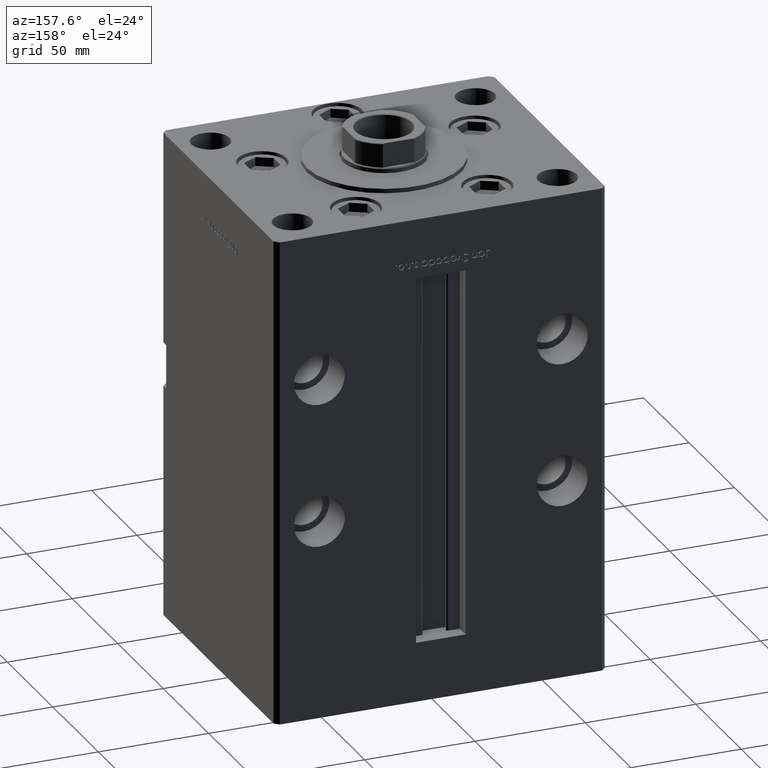
[diagram: clean part render]
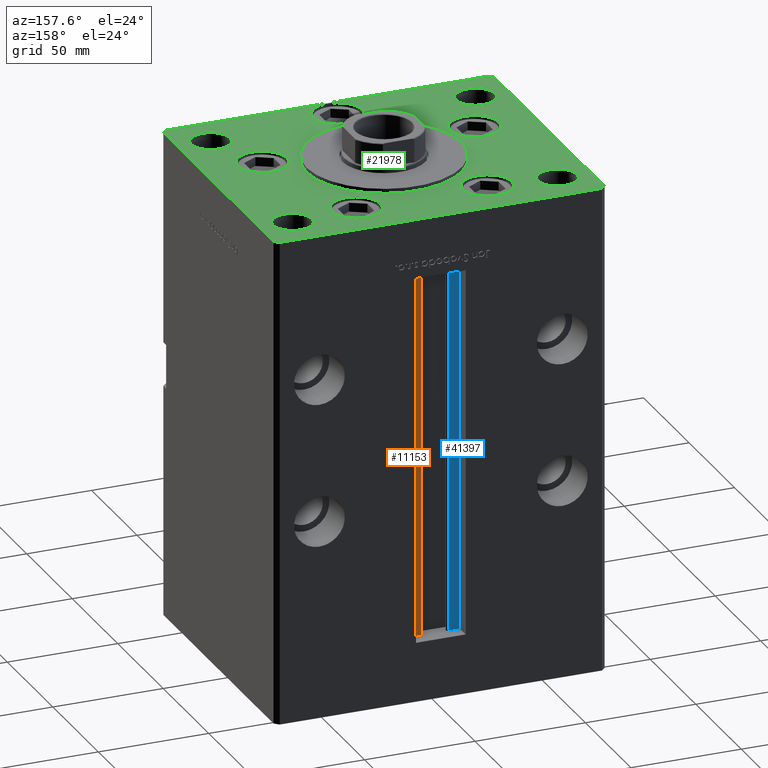
[diagram: same view with three faces highlighted in distinct colors, each labeled with its STEP entity id]
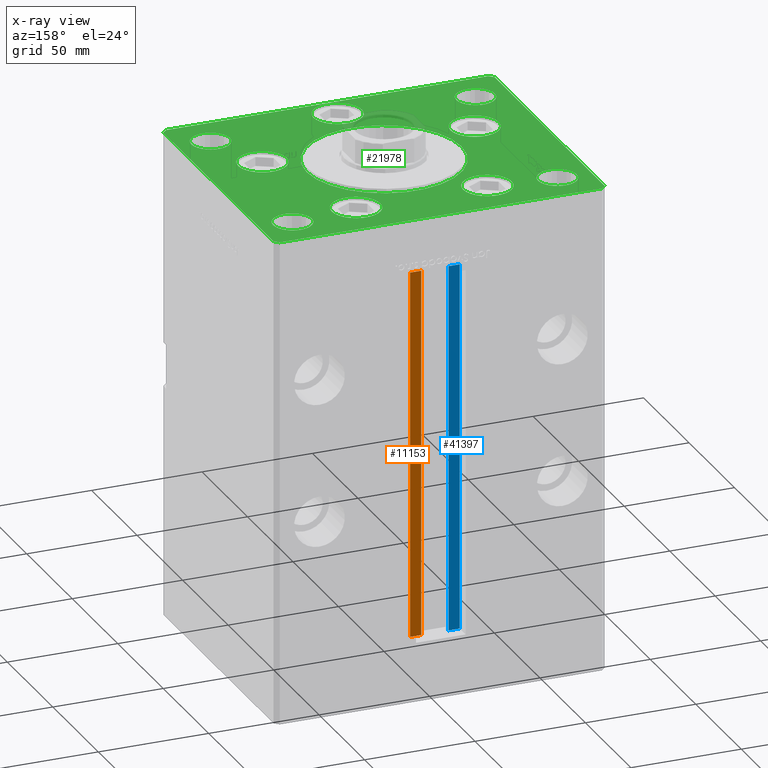
[diagram: x-ray of the same camera — body ghosted, the three highlighted faces saturated]
A machine part, auxiliary view with three faces highlighted in distinct colors.
The next image is the same camera in x-ray (body ghosted, the three faces saturated) — at least one of them is partly hidden behind the body in this view.
Their STEP definitions:

[orange] entity #11153 — the highlighted planar face has unit normal (0, -1, 0).
#974 = CARTESIAN_POINT ( 'NONE',  ( 0.000000000000000000, 56.00000000000000000, 167.0000000000000000 ) ) ;
#1354 = ORIENTED_EDGE ( 'NONE', *, *, #49458, .T. ) ;
#2306 = CARTESIAN_POINT ( 'NONE',  ( 6.183333333334001480, 56.00000000000000000, 0.000000000000000000 ) ) ;
#2781 = CARTESIAN_POINT ( 'NONE',  ( 6.183333333334001480, 56.00000000000000000, 0.000000000000000000 ) ) ;
#2928 = CARTESIAN_POINT ( 'NONE',  ( 6.183333333334001480, 56.00000000000000000, 166.9999999999999432 ) ) ;
#5123 = VERTEX_POINT ( 'NONE', #2928 ) ;
#7631 = PLANE ( 'NONE',  #26382 ) ;
#7887 = FACE_OUTER_BOUND ( 'NONE', #38687, .T. ) ;
#8849 = EDGE_CURVE ( 'NONE', #17867, #24452, #16036, .T. ) ;
#10290 = DIRECTION ( 'NONE',  ( -1.000000000000000000, 0.000000000000000000, 0.000000000000000000 ) ) ;
#11153 = ADVANCED_FACE ( 'NONE', ( #7887 ), #7631, .F. ) ;
#11917 = CARTESIAN_POINT ( 'NONE',  ( 6.183333333334001480, 56.00000000000000000, 0.000000000000000000 ) ) ;
#13519 = DIRECTION ( 'NONE',  ( -0.000000000000000000, -0.000000000000000000, 1.000000000000000000 ) ) ;
#16036 = LINE ( 'NONE', #29589, #51992 ) ;
#16175 = VECTOR ( 'NONE', #31377, 1000.000000000000000 ) ;
#17867 = VERTEX_POINT ( 'NONE', #25040 ) ;
#20837 = EDGE_CURVE ( 'NONE', #37995, #17867, #39203, .T. ) ;
#22025 = VECTOR ( 'NONE', #10290, 1000.000000000000000 ) ;
#23720 = CARTESIAN_POINT ( 'NONE',  ( 11.25000000000000178, 56.00000000000000000, 166.9999999999999432 ) ) ;
#23973 = DIRECTION ( 'NONE',  ( 0.000000000000000000, -1.000000000000000000, 0.000000000000000000 ) ) ;
#24452 = VERTEX_POINT ( 'NONE', #23720 ) ;
#25040 = CARTESIAN_POINT ( 'NONE',  ( 11.25000000000000178, 56.00000000000000000, 0.000000000000000000 ) ) ;
#26382 = AXIS2_PLACEMENT_3D ( 'NONE', #11917, #23973, #37063 ) ;
#27096 = LINE ( 'NONE', #43438, #16175 ) ;
#29589 = CARTESIAN_POINT ( 'NONE',  ( 11.25000000000000178, 56.00000000000000000, 0.000000000000000000 ) ) ;
#31377 = DIRECTION ( 'NONE',  ( -0.000000000000000000, -0.000000000000000000, 1.000000000000000000 ) ) ;
#35745 = ORIENTED_EDGE ( 'NONE', *, *, #20837, .F. ) ;
#35994 = DIRECTION ( 'NONE',  ( 1.000000000000000000, 0.000000000000000000, 0.000000000000000000 ) ) ;
#37063 = DIRECTION ( 'NONE',  ( 0.000000000000000000, -0.000000000000000000, -1.000000000000000000 ) ) ;
#37995 = VERTEX_POINT ( 'NONE', #2306 ) ;
#38575 = VECTOR ( 'NONE', #35994, 1000.000000000000000 ) ;
#38687 = EDGE_LOOP ( 'NONE', ( #48356, #35745, #1354, #44876 ) ) ;
#39203 = LINE ( 'NONE', #2781, #38575 ) ;
#42286 = EDGE_CURVE ( 'NONE', #24452, #5123, #42698, .T. ) ;
#42698 = LINE ( 'NONE', #974, #22025 ) ;
#43438 = CARTESIAN_POINT ( 'NONE',  ( 6.183333333334001480, 56.00000000000000000, 0.000000000000000000 ) ) ;
#44876 = ORIENTED_EDGE ( 'NONE', *, *, #42286, .F. ) ;
#48356 = ORIENTED_EDGE ( 'NONE', *, *, #8849, .F. ) ;
#49458 = EDGE_CURVE ( 'NONE', #37995, #5123, #27096, .T. ) ;
#51992 = VECTOR ( 'NONE', #13519, 1000.000000000000000 ) ;

[blue] entity #41397 — the highlighted planar face has unit normal (0, -1, 0).
#1021 = VECTOR ( 'NONE', #28704, 1000.000000000000000 ) ;
#1062 = LINE ( 'NONE', #17424, #28076 ) ;
#1606 = LINE ( 'NONE', #13400, #40878 ) ;
#3549 = ORIENTED_EDGE ( 'NONE', *, *, #22784, .F. ) ;
#3586 = EDGE_LOOP ( 'NONE', ( #50333, #3549, #49291, #48308 ) ) ;
#4071 = LINE ( 'NONE', #49071, #1021 ) ;
#5880 = DIRECTION ( 'NONE',  ( -0.000000000000000000, -0.000000000000000000, 1.000000000000000000 ) ) ;
#9510 = CARTESIAN_POINT ( 'NONE',  ( -11.25000000000000178, 56.00000000000000000, 166.9999999999999432 ) ) ;
#9558 = EDGE_CURVE ( 'NONE', #14223, #13226, #1062, .T. ) ;
#10227 = CARTESIAN_POINT ( 'NONE',  ( -6.183333333334002369, 56.00000000000000000, 166.9999999999999432 ) ) ;
#10309 = EDGE_CURVE ( 'NONE', #50434, #11855, #1606, .T. ) ;
#11855 = VERTEX_POINT ( 'NONE', #10227 ) ;
#13226 = VERTEX_POINT ( 'NONE', #9510 ) ;
#13400 = CARTESIAN_POINT ( 'NONE',  ( -6.183333333334001480, 56.00000000000000000, 0.000000000000000000 ) ) ;
#14223 = VERTEX_POINT ( 'NONE', #24209 ) ;
#16152 = PLANE ( 'NONE',  #36555 ) ;
#17424 = CARTESIAN_POINT ( 'NONE',  ( -11.25000000000000178, 56.00000000000000000, 0.000000000000000000 ) ) ;
#20451 = DIRECTION ( 'NONE',  ( 0.000000000000000000, 0.000000000000000000, -1.000000000000000000 ) ) ;
#22784 = EDGE_CURVE ( 'NONE', #14223, #50434, #4071, .T. ) ;
#24209 = CARTESIAN_POINT ( 'NONE',  ( -11.25000000000000178, 56.00000000000000000, 0.000000000000000000 ) ) ;
#28076 = VECTOR ( 'NONE', #5880, 1000.000000000000000 ) ;
#28467 = DIRECTION ( 'NONE',  ( 0.000000000000000000, -1.000000000000000000, -0.000000000000000000 ) ) ;
#28704 = DIRECTION ( 'NONE',  ( 1.000000000000000000, -0.000000000000000000, -0.000000000000000000 ) ) ;
#31105 = DIRECTION ( 'NONE',  ( -1.000000000000000000, 0.000000000000000000, 0.000000000000000000 ) ) ;
#31434 = VECTOR ( 'NONE', #31105, 1000.000000000000000 ) ;
#31652 = CARTESIAN_POINT ( 'NONE',  ( 0.000000000000000000, 56.00000000000000000, 167.0000000000000000 ) ) ;
#32491 = CARTESIAN_POINT ( 'NONE',  ( -6.183333333334001480, 56.00000000000000000, 0.000000000000000000 ) ) ;
#36504 = FACE_OUTER_BOUND ( 'NONE', #3586, .T. ) ;
#36555 = AXIS2_PLACEMENT_3D ( 'NONE', #32491, #28467, #20451 ) ;
#40878 = VECTOR ( 'NONE', #51170, 1000.000000000000000 ) ;
#41397 = ADVANCED_FACE ( 'NONE', ( #36504 ), #16152, .F. ) ;
#42733 = EDGE_CURVE ( 'NONE', #11855, #13226, #47190, .T. ) ;
#47190 = LINE ( 'NONE', #31652, #31434 ) ;
#48308 = ORIENTED_EDGE ( 'NONE', *, *, #42733, .F. ) ;
#49071 = CARTESIAN_POINT ( 'NONE',  ( -6.183333333334001480, 56.00000000000000000, 0.000000000000000000 ) ) ;
#49291 = ORIENTED_EDGE ( 'NONE', *, *, #9558, .T. ) ;
#50333 = ORIENTED_EDGE ( 'NONE', *, *, #10309, .F. ) ;
#50434 = VERTEX_POINT ( 'NONE', #52097 ) ;
#51170 = DIRECTION ( 'NONE',  ( -0.000000000000000000, -0.000000000000000000, 1.000000000000000000 ) ) ;
#52097 = CARTESIAN_POINT ( 'NONE',  ( -6.183333333334001480, 56.00000000000000000, 0.000000000000000000 ) ) ;

[green] entity #21978 — the highlighted planar face has unit normal (0, 0, 1).
#268 = VECTOR ( 'NONE', #17194, 1000.000000000000000 ) ;
#505 = DIRECTION ( 'NONE',  ( 1.000000000000000000, 0.000000000000000000, 0.000000000000000000 ) ) ;
#564 = AXIS2_PLACEMENT_3D ( 'NONE', #45406, #28801, #17279 ) ;
#571 = EDGE_LOOP ( 'NONE', ( #37069, #52110 ) ) ;
#1110 = DIRECTION ( 'NONE',  ( 0.000000000000000000, 0.000000000000000000, 1.000000000000000000 ) ) ;
#1119 = VERTEX_POINT ( 'NONE', #6177 ) ;
#3832 = CARTESIAN_POINT ( 'NONE',  ( 40.73102073172061921, 41.43749999999997868, 0.000000000000000000 ) ) ;
#4017 = AXIS2_PLACEMENT_3D ( 'NONE', #35761, #52394, #40319 ) ;
#4080 = VERTEX_POINT ( 'NONE', #48794 ) ;
#4099 = EDGE_LOOP ( 'NONE', ( #15639, #48298 ) ) ;
#4277 = DIRECTION ( 'NONE',  ( 0.000000000000000000, 0.000000000000000000, 1.000000000000000000 ) ) ;
#4371 = FACE_BOUND ( 'NONE', #571, .T. ) ;
#4529 = CARTESIAN_POINT ( 'NONE',  ( 0.000000000000000000, -6.938893903907228378E-15, 0.000000000000000000 ) ) ;
#4550 = VERTEX_POINT ( 'NONE', #42505 ) ;
#4707 = CARTESIAN_POINT ( 'NONE',  ( -40.73102073172061921, 41.43749999999997868, 0.000000000000000000 ) ) ;
#4763 = VERTEX_POINT ( 'NONE', #49183 ) ;
#4843 = CIRCLE ( 'NONE', #41630, 11.00000000000000355 ) ;
#5784 = VERTEX_POINT ( 'NONE', #3832 ) ;
#6046 = CIRCLE ( 'NONE', #31753, 11.00000000000000000 ) ;
#6177 = CARTESIAN_POINT ( 'NONE',  ( 11.00000000000000000, -51.00000000000000000, 0.000000000000000000 ) ) ;
#6267 = LINE ( 'NONE', #50496, #21372 ) ;
#6334 = CARTESIAN_POINT ( 'NONE',  ( 51.24999999999999289, 45.00000000000000000, 0.000000000000000000 ) ) ;
#6416 = EDGE_LOOP ( 'NONE', ( #37378, #16732 ) ) ;
#6610 = AXIS2_PLACEMENT_3D ( 'NONE', #36128, #40416, #51966 ) ;
#6714 = CARTESIAN_POINT ( 'NONE',  ( 0.000000000000000000, 0.000000000000000000, 0.000000000000000000 ) ) ;
#6978 = FACE_BOUND ( 'NONE', #31462, .T. ) ;
#7041 = VERTEX_POINT ( 'NONE', #20681 ) ;
#7513 = PLANE ( 'NONE',  #42904 ) ;
#8084 = CIRCLE ( 'NONE', #14918, 11.00000000000000000 ) ;
#8085 = CARTESIAN_POINT ( 'NONE',  ( 0.000000000000000000, -51.00000000000000000, 0.000000000000000000 ) ) ;
#8207 = CARTESIAN_POINT ( 'NONE',  ( 59.08326112068523628, -16.99999999999998934, 0.000000000000000000 ) ) ;
#8300 = EDGE_LOOP ( 'NONE', ( #17481, #18244, #29220, #20880, #45503, #41287, #27871, #31729 ) ) ;
#8396 = FACE_BOUND ( 'NONE', #6416, .T. ) ;
#8527 = DIRECTION ( 'NONE',  ( 1.000000000000000000, 0.000000000000000000, 0.000000000000000000 ) ) ;
#8601 = DIRECTION ( 'NONE',  ( 1.000000000000000000, 0.000000000000000000, 0.000000000000000000 ) ) ;
#8714 = ORIENTED_EDGE ( 'NONE', *, *, #43581, .F. ) ;
#9118 = CARTESIAN_POINT ( 'NONE',  ( -29.73102073172061921, 41.43749999999997868, 0.000000000000000000 ) ) ;
#9337 = CARTESIAN_POINT ( 'NONE',  ( 29.73102073172061921, 41.43749999999997868, 0.000000000000000000 ) ) ;
#10521 = VERTEX_POINT ( 'NONE', #15786 ) ;
#10675 = CARTESIAN_POINT ( 'NONE',  ( -51.25000000000000000, 45.00000000000000711, 0.000000000000000000 ) ) ;
#10747 = CIRCLE ( 'NONE', #44975, 8.750000000000000000 ) ;
#10846 = ORIENTED_EDGE ( 'NONE', *, *, #52854, .F. ) ;
#10982 = CARTESIAN_POINT ( 'NONE',  ( 0.000000000000000000, -6.938893903907228378E-15, 0.000000000000000000 ) ) ;
#11052 = CIRCLE ( 'NONE', #15334, 11.00000000000000355 ) ;
#11375 = VECTOR ( 'NONE', #46253, 1000.000000000000000 ) ;
#11770 = DIRECTION ( 'NONE',  ( 0.000000000000000000, 0.000000000000000000, 1.000000000000000000 ) ) ;
#12117 = ORIENTED_EDGE ( 'NONE', *, *, #12485, .T. ) ;
#12122 = VERTEX_POINT ( 'NONE', #35328 ) ;
#12186 = VERTEX_POINT ( 'NONE', #23288 ) ;
#12470 = DIRECTION ( 'NONE',  ( 0.000000000000000000, 0.000000000000000000, 1.000000000000000000 ) ) ;
#12485 = EDGE_CURVE ( 'NONE', #38963, #7041, #52108, .T. ) ;
#12887 = DIRECTION ( 'NONE',  ( 1.000000000000000000, 0.000000000000000000, 0.000000000000000000 ) ) ;
#12928 = EDGE_CURVE ( 'NONE', #27529, #50149, #26416, .T. ) ;
#12941 = FACE_BOUND ( 'NONE', #16078, .T. ) ;
#13097 = VERTEX_POINT ( 'NONE', #8207 ) ;
#13206 = DIRECTION ( 'NONE',  ( 0.000000000000000000, 0.000000000000000000, 1.000000000000000000 ) ) ;
#13484 = VERTEX_POINT ( 'NONE', #18285 ) ;
#13751 = EDGE_CURVE ( 'NONE', #47730, #10521, #35875, .T. ) ;
#13882 = VERTEX_POINT ( 'NONE', #45149 ) ;
#14084 = CARTESIAN_POINT ( 'NONE',  ( -29.73102073172061921, 41.43749999999997868, 0.000000000000000000 ) ) ;
#14177 = EDGE_CURVE ( 'NONE', #12122, #29344, #43601, .T. ) ;
#14722 = DIRECTION ( 'NONE',  ( 0.000000000000000000, 0.000000000000000000, 1.000000000000000000 ) ) ;
#14759 = CARTESIAN_POINT ( 'NONE',  ( 48.08326112068523628, -16.99999999999998934, 0.000000000000000000 ) ) ;
#14779 = CARTESIAN_POINT ( 'NONE',  ( 60.00000000000000000, 45.00000000000000000, 0.000000000000000000 ) ) ;
#14918 = AXIS2_PLACEMENT_3D ( 'NONE', #8085, #16121, #12887 ) ;
#15031 = AXIS2_PLACEMENT_3D ( 'NONE', #14759, #18801, #35928 ) ;
#15334 = AXIS2_PLACEMENT_3D ( 'NONE', #41596, #25004, #28762 ) ;
#15405 = EDGE_CURVE ( 'NONE', #4550, #23150, #32506, .T. ) ;
#15639 = ORIENTED_EDGE ( 'NONE', *, *, #12928, .F. ) ;
#15786 = CARTESIAN_POINT ( 'NONE',  ( -18.73102073172061921, 41.43749999999997868, 0.000000000000000000 ) ) ;
#16078 = EDGE_LOOP ( 'NONE', ( #51277, #8714 ) ) ;
#16121 = DIRECTION ( 'NONE',  ( 0.000000000000000000, 0.000000000000000000, 1.000000000000000000 ) ) ;
#16732 = ORIENTED_EDGE ( 'NONE', *, *, #39498, .F. ) ;
#16867 = VERTEX_POINT ( 'NONE', #29112 ) ;
#17194 = DIRECTION ( 'NONE',  ( -0.7071067811865524577, 0.7071067811865426878, 0.000000000000000000 ) ) ;
#17279 = DIRECTION ( 'NONE',  ( -1.000000000000000000, 0.000000000000000000, 0.000000000000000000 ) ) ;
#17332 = CARTESIAN_POINT ( 'NONE',  ( 60.00000000000000711, -45.00000000000000000, 0.000000000000000000 ) ) ;
#17481 = ORIENTED_EDGE ( 'NONE', *, *, #29059, .T. ) ;
#17552 = CARTESIAN_POINT ( 'NONE',  ( -60.00000000000000711, -45.00000000000000000, 0.000000000000000000 ) ) ;
#17858 = AXIS2_PLACEMENT_3D ( 'NONE', #14779, #44965, #8527 ) ;
#17985 = EDGE_LOOP ( 'NONE', ( #47493, #30208 ) ) ;
#18101 = CIRCLE ( 'NONE', #36910, 11.00000000000000000 ) ;
#18159 = EDGE_CURVE ( 'NONE', #12186, #4080, #18778, .T. ) ;
#18244 = ORIENTED_EDGE ( 'NONE', *, *, #28612, .T. ) ;
#18285 = CARTESIAN_POINT ( 'NONE',  ( -73.00000000000001421, -62.50000000000002842, 0.000000000000000000 ) ) ;
#18509 = VECTOR ( 'NONE', #52926, 1000.000000000000000 ) ;
#18779 = EDGE_CURVE ( 'NONE', #24897, #13882, #6267, .T. ) ;
#18778 = CIRCLE ( 'NONE', #23028, 11.00000000000000355 ) ;
#18801 = DIRECTION ( 'NONE',  ( 0.000000000000000000, 0.000000000000000000, 1.000000000000000000 ) ) ;
#18963 = CARTESIAN_POINT ( 'NONE',  ( -75.00000000000000000, 60.50000000000000000, 0.000000000000000000 ) ) ;
#19012 = DIRECTION ( 'NONE',  ( 0.7071067811865474617, -0.7071067811865474617, 0.000000000000000000 ) ) ;
#19167 = EDGE_CURVE ( 'NONE', #23150, #4550, #33331, .T. ) ;
#19470 = CARTESIAN_POINT ( 'NONE',  ( 73.00000000000001421, 62.50000000000000000, 0.000000000000000000 ) ) ;
#19589 = EDGE_LOOP ( 'NONE', ( #39379, #27661 ) ) ;
#19662 = ORIENTED_EDGE ( 'NONE', *, *, #45386, .T. ) ;
#19820 = DIRECTION ( 'NONE',  ( 1.000000000000000000, 0.000000000000000000, 0.000000000000000000 ) ) ;
#20670 = EDGE_CURVE ( 'NONE', #10521, #47730, #18101, .T. ) ;
#20681 = CARTESIAN_POINT ( 'NONE',  ( -68.75000000000000000, 45.00000000000000711, 0.000000000000000000 ) ) ;
#20880 = ORIENTED_EDGE ( 'NONE', *, *, #38298, .T. ) ;
#21372 = VECTOR ( 'NONE', #34135, 1000.000000000000000 ) ;
#21651 = AXIS2_PLACEMENT_3D ( 'NONE', #9337, #4277, #24635 ) ;
#21978 = ADVANCED_FACE ( 'NONE', ( #24994, #45094, #8396, #33295, #24740, #4371, #49662, #41325, #12941, #44578, #6978 ), #7513, .T. ) ;
#22253 = VERTEX_POINT ( 'NONE', #45425 ) ;
#22463 = EDGE_CURVE ( 'NONE', #13097, #22253, #24156, .T. ) ;
#22979 = LINE ( 'NONE', #18963, #38907 ) ;
#23012 = DIRECTION ( 'NONE',  ( 1.000000000000000000, 0.000000000000000000, 0.000000000000000000 ) ) ;
#23028 = AXIS2_PLACEMENT_3D ( 'NONE', #42564, #50618, #23012 ) ;
#23126 = CARTESIAN_POINT ( 'NONE',  ( -72.99999999999998579, 62.49999999999997158, 0.000000000000000000 ) ) ;
#23150 = VERTEX_POINT ( 'NONE', #41473 ) ;
#23288 = CARTESIAN_POINT ( 'NONE',  ( -59.08326112068523628, -16.99999999999998934, 0.000000000000000000 ) ) ;
#23950 = AXIS2_PLACEMENT_3D ( 'NONE', #10982, #14722, #27052 ) ;
#24156 = CIRCLE ( 'NONE', #29298, 11.00000000000000355 ) ;
#24606 = CARTESIAN_POINT ( 'NONE',  ( 0.000000000000000000, -51.00000000000000000, 0.000000000000000000 ) ) ;
#24635 = DIRECTION ( 'NONE',  ( 1.000000000000000000, 0.000000000000000000, 0.000000000000000000 ) ) ;
#24715 = LINE ( 'NONE', #49367, #32124 ) ;
#24740 = FACE_BOUND ( 'NONE', #30640, .T. ) ;
#24897 = VERTEX_POINT ( 'NONE', #23126 ) ;
#24958 = CARTESIAN_POINT ( 'NONE',  ( 75.00000000000001421, 60.50000000000002842, 0.000000000000000000 ) ) ;
#24994 = FACE_BOUND ( 'NONE', #19589, .T. ) ;
#25004 = DIRECTION ( 'NONE',  ( 0.000000000000000000, 0.000000000000000000, 1.000000000000000000 ) ) ;
#25015 = EDGE_CURVE ( 'NONE', #16867, #31919, #45831, .T. ) ;
#25300 = EDGE_CURVE ( 'NONE', #5784, #4763, #37059, .T. ) ;
#25584 = DIRECTION ( 'NONE',  ( -1.000000000000000000, 0.000000000000000000, 0.000000000000000000 ) ) ;
#26234 = LINE ( 'NONE', #42578, #28494 ) ;
#26416 = CIRCLE ( 'NONE', #17858, 8.750000000000007105 ) ;
#26425 = DIRECTION ( 'NONE',  ( 1.000000000000000000, 0.000000000000000000, 0.000000000000000000 ) ) ;
#27052 = DIRECTION ( 'NONE',  ( 1.000000000000000000, 0.000000000000000000, 0.000000000000000000 ) ) ;
#27529 = VERTEX_POINT ( 'NONE', #42168 ) ;
#27661 = ORIENTED_EDGE ( 'NONE', *, *, #19167, .F. ) ;
#27701 = DIRECTION ( 'NONE',  ( 1.000000000000000000, 0.000000000000000000, 0.000000000000000000 ) ) ;
#27871 = ORIENTED_EDGE ( 'NONE', *, *, #18779, .T. ) ;
#28215 = DIRECTION ( 'NONE',  ( -1.000000000000000000, -1.901066822988281950E-16, 0.000000000000000000 ) ) ;
#28494 = VECTOR ( 'NONE', #19012, 1000.000000000000114 ) ;
#28612 = EDGE_CURVE ( 'NONE', #13484, #50121, #46000, .T. ) ;
#28703 = DIRECTION ( 'NONE',  ( 0.000000000000000000, 0.000000000000000000, 1.000000000000000000 ) ) ;
#28762 = DIRECTION ( 'NONE',  ( 1.000000000000000000, 0.000000000000000000, 0.000000000000000000 ) ) ;
#28801 = DIRECTION ( 'NONE',  ( -0.000000000000000000, -0.000000000000000000, -1.000000000000000000 ) ) ;
#29059 = EDGE_CURVE ( 'NONE', #52666, #13484, #26234, .T. ) ;
#29112 = CARTESIAN_POINT ( 'NONE',  ( 75.00000000000001421, 60.50000000000002842, 0.000000000000000000 ) ) ;
#29220 = ORIENTED_EDGE ( 'NONE', *, *, #31621, .T. ) ;
#29298 = AXIS2_PLACEMENT_3D ( 'NONE', #49129, #13206, #33562 ) ;
#29344 = VERTEX_POINT ( 'NONE', #30722 ) ;
#29658 = CIRCLE ( 'NONE', #4017, 8.750000000000000000 ) ;
#29789 = CARTESIAN_POINT ( 'NONE',  ( 51.25000000000000711, -45.00000000000000000, 0.000000000000000000 ) ) ;
#30161 = DIRECTION ( 'NONE',  ( -0.000000000000000000, -0.000000000000000000, -1.000000000000000000 ) ) ;
#30208 = ORIENTED_EDGE ( 'NONE', *, *, #37223, .F. ) ;
#30640 = EDGE_LOOP ( 'NONE', ( #48347, #10846 ) ) ;
#30722 = CARTESIAN_POINT ( 'NONE',  ( -68.75000000000000000, -45.00000000000000000, 0.000000000000000000 ) ) ;
#30777 = CARTESIAN_POINT ( 'NONE',  ( 75.00000000000001421, -60.49999999999992184, 0.000000000000000000 ) ) ;
#31462 = EDGE_LOOP ( 'NONE', ( #19662, #35622 ) ) ;
#31597 = AXIS2_PLACEMENT_3D ( 'NONE', #9118, #28703, #8601 ) ;
#31621 = EDGE_CURVE ( 'NONE', #50121, #37623, #40147, .T. ) ;
#31729 = ORIENTED_EDGE ( 'NONE', *, *, #34297, .T. ) ;
#31753 = AXIS2_PLACEMENT_3D ( 'NONE', #24606, #11770, #19820 ) ;
#31919 = VERTEX_POINT ( 'NONE', #19470 ) ;
#32124 = VECTOR ( 'NONE', #28215, 1000.000000000000000 ) ;
#32506 = CIRCLE ( 'NONE', #23950, 35.00000000000000711 ) ;
#33131 = DIRECTION ( 'NONE',  ( -1.000000000000000000, 0.000000000000000000, 0.000000000000000000 ) ) ;
#33295 = FACE_BOUND ( 'NONE', #17985, .T. ) ;
#33331 = CIRCLE ( 'NONE', #37611, 35.00000000000000711 ) ;
#33530 = DIRECTION ( 'NONE',  ( 1.000000000000000000, 0.000000000000000000, 0.000000000000000000 ) ) ;
#33562 = DIRECTION ( 'NONE',  ( 1.000000000000000000, 0.000000000000000000, 0.000000000000000000 ) ) ;
#33624 = ORIENTED_EDGE ( 'NONE', *, *, #40307, .T. ) ;
#33867 = EDGE_CURVE ( 'NONE', #1119, #49733, #8084, .T. ) ;
#34093 = ORIENTED_EDGE ( 'NONE', *, *, #13751, .F. ) ;
#34135 = DIRECTION ( 'NONE',  ( -0.7071067811865549002, -0.7071067811865401342, 0.000000000000000000 ) ) ;
#34297 = EDGE_CURVE ( 'NONE', #13882, #52666, #22979, .T. ) ;
#34793 = CARTESIAN_POINT ( 'NONE',  ( -11.00000000000000000, -51.00000000000000000, 0.000000000000000000 ) ) ;
#34999 = CARTESIAN_POINT ( 'NONE',  ( 73.00000000000001421, -62.49999999999991473, 0.000000000000000000 ) ) ;
#35328 = CARTESIAN_POINT ( 'NONE',  ( -51.25000000000000711, -45.00000000000000000, 0.000000000000000000 ) ) ;
#35622 = ORIENTED_EDGE ( 'NONE', *, *, #36805, .T. ) ;
#35761 = CARTESIAN_POINT ( 'NONE',  ( 60.00000000000000711, -45.00000000000000000, 0.000000000000000000 ) ) ;
#35762 = CARTESIAN_POINT ( 'NONE',  ( 75.00000000000001421, -60.49999999999992184, 0.000000000000000000 ) ) ;
#35875 = CIRCLE ( 'NONE', #31597, 11.00000000000000000 ) ;
#35928 = DIRECTION ( 'NONE',  ( 1.000000000000000000, 0.000000000000000000, 0.000000000000000000 ) ) ;
#36128 = CARTESIAN_POINT ( 'NONE',  ( 60.00000000000000000, 45.00000000000000000, 0.000000000000000000 ) ) ;
#36185 = EDGE_CURVE ( 'NONE', #31919, #24897, #24715, .T. ) ;
#36750 = AXIS2_PLACEMENT_3D ( 'NONE', #43512, #43237, #27701 ) ;
#36805 = EDGE_CURVE ( 'NONE', #42686, #44615, #10747, .T. ) ;
#36910 = AXIS2_PLACEMENT_3D ( 'NONE', #14084, #46778, #26425 ) ;
#37059 = CIRCLE ( 'NONE', #21651, 11.00000000000000355 ) ;
#37069 = ORIENTED_EDGE ( 'NONE', *, *, #51261, .F. ) ;
#37110 = CARTESIAN_POINT ( 'NONE',  ( -60.00000000000000000, 45.00000000000000711, 0.000000000000000000 ) ) ;
#37223 = EDGE_CURVE ( 'NONE', #22253, #13097, #52681, .T. ) ;
#37341 = AXIS2_PLACEMENT_3D ( 'NONE', #17552, #12470, #45150 ) ;
#37378 = ORIENTED_EDGE ( 'NONE', *, *, #25300, .F. ) ;
#37553 = CARTESIAN_POINT ( 'NONE',  ( 29.73102073172061921, 41.43749999999997868, 0.000000000000000000 ) ) ;
#37611 = AXIS2_PLACEMENT_3D ( 'NONE', #4529, #44741, #505 ) ;
#37623 = VERTEX_POINT ( 'NONE', #30777 ) ;
#38186 = CIRCLE ( 'NONE', #37341, 8.750000000000000000 ) ;
#38298 = EDGE_CURVE ( 'NONE', #37623, #16867, #44078, .T. ) ;
#38907 = VECTOR ( 'NONE', #48151, 1000.000000000000000 ) ;
#38963 = VERTEX_POINT ( 'NONE', #10675 ) ;
#39105 = CIRCLE ( 'NONE', #6610, 8.750000000000007105 ) ;
#39379 = ORIENTED_EDGE ( 'NONE', *, *, #15405, .F. ) ;
#39498 = EDGE_CURVE ( 'NONE', #4763, #5784, #4843, .T. ) ;
#39601 = CARTESIAN_POINT ( 'NONE',  ( 73.00000000000001421, -62.49999999999991473, 0.000000000000000000 ) ) ;
#40147 = LINE ( 'NONE', #39601, #49113 ) ;
#40307 = EDGE_CURVE ( 'NONE', #7041, #38963, #46758, .T. ) ;
#40319 = DIRECTION ( 'NONE',  ( -1.000000000000000000, 0.000000000000000000, 0.000000000000000000 ) ) ;
#40416 = DIRECTION ( 'NONE',  ( 0.000000000000000000, 0.000000000000000000, 1.000000000000000000 ) ) ;
#40844 = EDGE_CURVE ( 'NONE', #50149, #27529, #39105, .T. ) ;
#41287 = ORIENTED_EDGE ( 'NONE', *, *, #36185, .T. ) ;
#41325 = FACE_BOUND ( 'NONE', #4099, .T. ) ;
#41473 = CARTESIAN_POINT ( 'NONE',  ( 35.00000000000000711, -2.652630106891490698E-15, 0.000000000000000000 ) ) ;
#41596 = CARTESIAN_POINT ( 'NONE',  ( -48.08326112068523628, -16.99999999999998934, 0.000000000000000000 ) ) ;
#41630 = AXIS2_PLACEMENT_3D ( 'NONE', #37553, #1110, #33530 ) ;
#42168 = CARTESIAN_POINT ( 'NONE',  ( 68.75000000000000000, 45.00000000000000000, 0.000000000000000000 ) ) ;
#42505 = CARTESIAN_POINT ( 'NONE',  ( -35.00000000000000711, -6.938893903907228378E-15, 0.000000000000000000 ) ) ;
#42564 = CARTESIAN_POINT ( 'NONE',  ( -48.08326112068523628, -16.99999999999998934, 0.000000000000000000 ) ) ;
#42578 = CARTESIAN_POINT ( 'NONE',  ( -75.00000000000000000, -60.50000000000004263, 0.000000000000000000 ) ) ;
#42686 = VERTEX_POINT ( 'NONE', #29789 ) ;
#42904 = AXIS2_PLACEMENT_3D ( 'NONE', #6714, #44487, #48770 ) ;
#43237 = DIRECTION ( 'NONE',  ( 0.000000000000000000, 0.000000000000000000, 1.000000000000000000 ) ) ;
#43277 = ORIENTED_EDGE ( 'NONE', *, *, #20670, .F. ) ;
#43512 = CARTESIAN_POINT ( 'NONE',  ( -60.00000000000000711, -45.00000000000000000, 0.000000000000000000 ) ) ;
#43581 = EDGE_CURVE ( 'NONE', #29344, #12122, #38186, .T. ) ;
#43601 = CIRCLE ( 'NONE', #36750, 8.750000000000000000 ) ;
#44078 = LINE ( 'NONE', #35762, #18509 ) ;
#44438 = DIRECTION ( 'NONE',  ( 0.7071067811865489050, 0.7071067811865462405, 0.000000000000000000 ) ) ;
#44487 = DIRECTION ( 'NONE',  ( -0.000000000000000000, 0.000000000000000000, 1.000000000000000000 ) ) ;
#44578 = FACE_OUTER_BOUND ( 'NONE', #8300, .T. ) ;
#44615 = VERTEX_POINT ( 'NONE', #47835 ) ;
#44741 = DIRECTION ( 'NONE',  ( 0.000000000000000000, 0.000000000000000000, 1.000000000000000000 ) ) ;
#44965 = DIRECTION ( 'NONE',  ( 0.000000000000000000, 0.000000000000000000, 1.000000000000000000 ) ) ;
#44975 = AXIS2_PLACEMENT_3D ( 'NONE', #17332, #30161, #33131 ) ;
#45094 = FACE_BOUND ( 'NONE', #46155, .T. ) ;
#45149 = CARTESIAN_POINT ( 'NONE',  ( -75.00000000000000000, 60.50000000000000000, 0.000000000000000000 ) ) ;
#45150 = DIRECTION ( 'NONE',  ( 1.000000000000000000, 0.000000000000000000, 0.000000000000000000 ) ) ;
#45386 = EDGE_CURVE ( 'NONE', #44615, #42686, #29658, .T. ) ;
#45406 = CARTESIAN_POINT ( 'NONE',  ( -60.00000000000000000, 45.00000000000000711, 0.000000000000000000 ) ) ;
#45425 = CARTESIAN_POINT ( 'NONE',  ( 37.08326112068522917, -16.99999999999998934, 0.000000000000000000 ) ) ;
#45503 = ORIENTED_EDGE ( 'NONE', *, *, #25015, .T. ) ;
#45669 = DIRECTION ( 'NONE',  ( -0.000000000000000000, -0.000000000000000000, -1.000000000000000000 ) ) ;
#45831 = LINE ( 'NONE', #24958, #268 ) ;
#46000 = LINE ( 'NONE', #46786, #11375 ) ;
#46155 = EDGE_LOOP ( 'NONE', ( #43277, #34093 ) ) ;
#46253 = DIRECTION ( 'NONE',  ( 1.000000000000000000, 7.604267291953125828E-16, 0.000000000000000000 ) ) ;
#46758 = CIRCLE ( 'NONE', #564, 8.750000000000007105 ) ;
#46778 = DIRECTION ( 'NONE',  ( 0.000000000000000000, 0.000000000000000000, 1.000000000000000000 ) ) ;
#46786 = CARTESIAN_POINT ( 'NONE',  ( -73.00000000000001421, -62.50000000000002842, 0.000000000000000000 ) ) ;
#47199 = CARTESIAN_POINT ( 'NONE',  ( -75.00000000000000000, -60.50000000000004263, 0.000000000000000000 ) ) ;
#47493 = ORIENTED_EDGE ( 'NONE', *, *, #22463, .F. ) ;
#47730 = VERTEX_POINT ( 'NONE', #4707 ) ;
#47835 = CARTESIAN_POINT ( 'NONE',  ( 68.75000000000000000, -45.00000000000000000, 0.000000000000000000 ) ) ;
#48151 = DIRECTION ( 'NONE',  ( 0.000000000000000000, -1.000000000000000000, 0.000000000000000000 ) ) ;
#48298 = ORIENTED_EDGE ( 'NONE', *, *, #40844, .F. ) ;
#48347 = ORIENTED_EDGE ( 'NONE', *, *, #33867, .F. ) ;
#48770 = DIRECTION ( 'NONE',  ( 1.000000000000000000, 0.000000000000000000, 0.000000000000000000 ) ) ;
#48794 = CARTESIAN_POINT ( 'NONE',  ( -37.08326112068522917, -16.99999999999998934, 0.000000000000000000 ) ) ;
#49113 = VECTOR ( 'NONE', #44438, 999.9999999999998863 ) ;
#49129 = CARTESIAN_POINT ( 'NONE',  ( 48.08326112068523628, -16.99999999999998934, 0.000000000000000000 ) ) ;
#49183 = CARTESIAN_POINT ( 'NONE',  ( 18.73102073172061921, 41.43749999999997868, 0.000000000000000000 ) ) ;
#49367 = CARTESIAN_POINT ( 'NONE',  ( 73.00000000000001421, 62.50000000000000000, 0.000000000000000000 ) ) ;
#49662 = FACE_BOUND ( 'NONE', #52905, .T. ) ;
#49733 = VERTEX_POINT ( 'NONE', #34793 ) ;
#50121 = VERTEX_POINT ( 'NONE', #34999 ) ;
#50149 = VERTEX_POINT ( 'NONE', #6334 ) ;
#50496 = CARTESIAN_POINT ( 'NONE',  ( -72.99999999999998579, 62.49999999999997158, 0.000000000000000000 ) ) ;
#50618 = DIRECTION ( 'NONE',  ( 0.000000000000000000, 0.000000000000000000, 1.000000000000000000 ) ) ;
#51248 = AXIS2_PLACEMENT_3D ( 'NONE', #37110, #45669, #25584 ) ;
#51261 = EDGE_CURVE ( 'NONE', #4080, #12186, #11052, .T. ) ;
#51277 = ORIENTED_EDGE ( 'NONE', *, *, #14177, .F. ) ;
#51966 = DIRECTION ( 'NONE',  ( 1.000000000000000000, 0.000000000000000000, 0.000000000000000000 ) ) ;
#52108 = CIRCLE ( 'NONE', #51248, 8.750000000000007105 ) ;
#52110 = ORIENTED_EDGE ( 'NONE', *, *, #18159, .F. ) ;
#52394 = DIRECTION ( 'NONE',  ( -0.000000000000000000, -0.000000000000000000, -1.000000000000000000 ) ) ;
#52666 = VERTEX_POINT ( 'NONE', #47199 ) ;
#52681 = CIRCLE ( 'NONE', #15031, 11.00000000000000355 ) ;
#52854 = EDGE_CURVE ( 'NONE', #49733, #1119, #6046, .T. ) ;
#52905 = EDGE_LOOP ( 'NONE', ( #12117, #33624 ) ) ;
#52926 = DIRECTION ( 'NONE',  ( 0.000000000000000000, 1.000000000000000000, 0.000000000000000000 ) ) ;